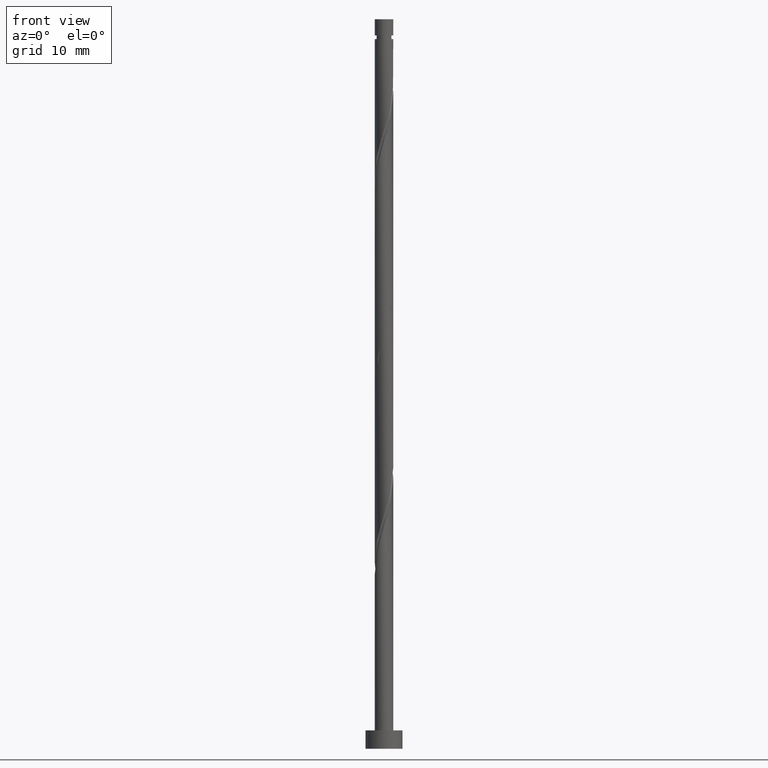
[diagram: clean part render]
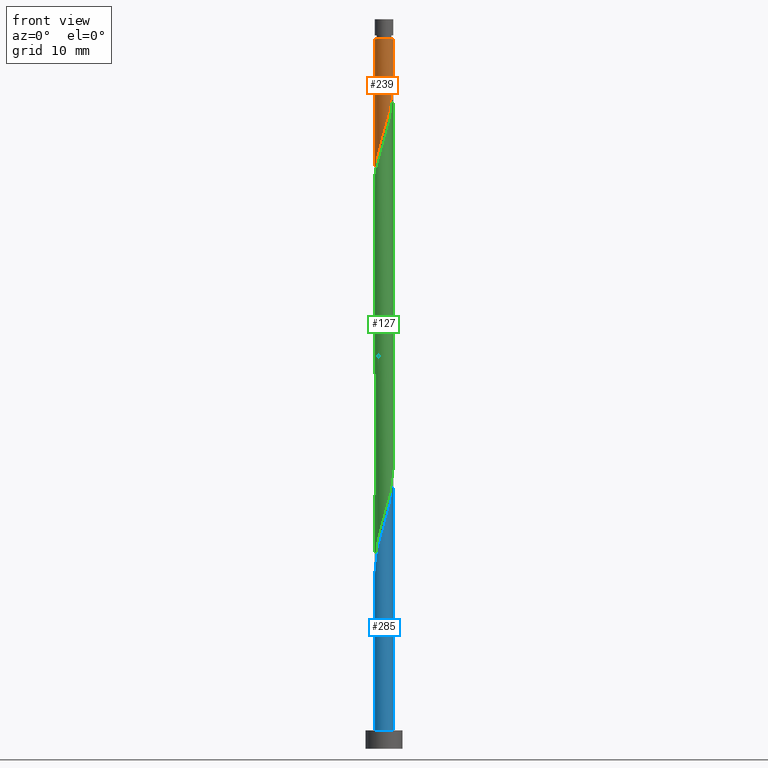
[diagram: same view with three faces highlighted in distinct colors, each labeled with its STEP entity id]
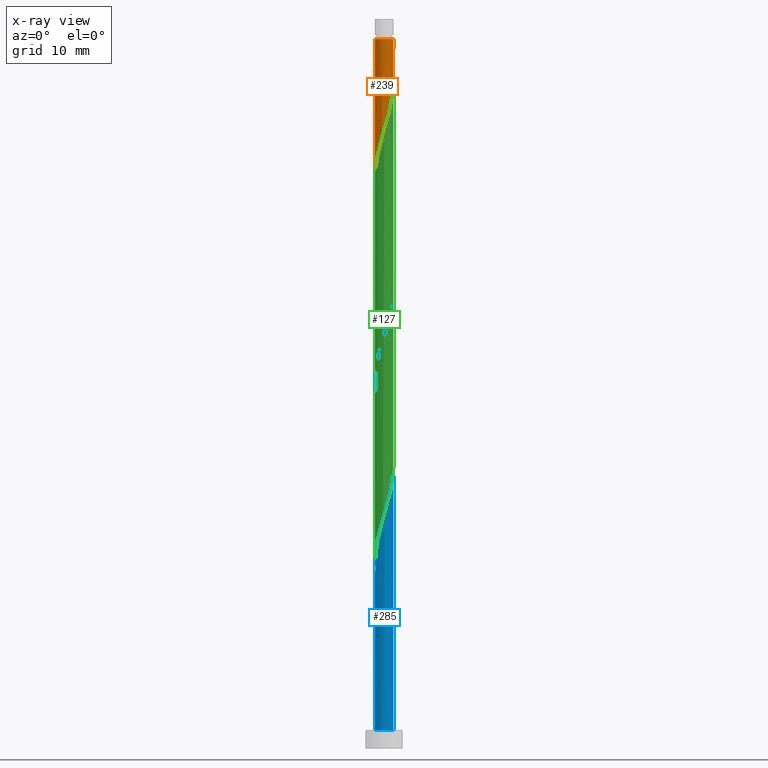
[diagram: x-ray of the same camera — body ghosted, the three highlighted faces saturated]
A machine part, front view with three faces highlighted in distinct colors.
The next image is the same camera in x-ray (body ghosted, the three faces saturated) — at least one of them is partly hidden behind the body in this view.
Their STEP definitions:

[orange] entity #239 — the highlighted cylindrical surface (edge-blend (fillet) strip) has radius 1 mm, axis along (-0, -0, -1).
#2 = CARTESIAN_POINT ( 'NONE',  ( 1.000000000000000000, 1.224646799147353207E-16, 61.79877228452347993 ) ) ;
#20 = AXIS2_PLACEMENT_3D ( 'NONE', #1392, #612, #1376 ) ;
#48 = CARTESIAN_POINT ( 'NONE',  ( -0.9935289914203551120, -0.1135787973490405278, 62.26539769507107991 ) ) ;
#66 = DIRECTION ( 'NONE',  ( -0.000000000000000000, -0.000000000000000000, -1.000000000000000000 ) ) ;
#85 = EDGE_CURVE ( 'NONE', #934, #1208, #392, .T. ) ;
#86 = ORIENTED_EDGE ( 'NONE', *, *, #633, .T. ) ;
#104 = CARTESIAN_POINT ( 'NONE',  ( 0.1989974874211789535, 0.9799999999986033217, 76.84873102840442982 ) ) ;
#142 = DIRECTION ( 'NONE',  ( -0.000000000000000000, -0.000000000000000000, -1.000000000000000000 ) ) ;
#168 = CARTESIAN_POINT ( 'NONE',  ( -0.9755398771694934190, -0.2709383306013544157, 62.78623102840443693 ) ) ;
#192 = CARTESIAN_POINT ( 'NONE',  ( -0.3542142389393653779, -0.9484818943287876003, 65.91123102840442982 ) ) ;
#214 = VECTOR ( 'NONE', #939, 1000.000000000000000 ) ;
#239 = ADVANCED_FACE ( 'NONE', ( #500 ), #946, .T. ) ;
#254 = CARTESIAN_POINT ( 'NONE',  ( 1.000000000000002665, 1.224646799147356412E-16, 76.84873102840442982 ) ) ;
#269 = DIRECTION ( 'NONE',  ( -1.000000000000000000, 0.000000000000000000, 0.000000000000000000 ) ) ;
#276 = DIRECTION ( 'NONE',  ( -1.000000000000000000, 0.000000000000000000, 0.000000000000000000 ) ) ;
#301 = CARTESIAN_POINT ( 'NONE',  ( -0.1989974874213194245, -0.9800000000000023137, 66.43206436173775842 ) ) ;
#308 = CARTESIAN_POINT ( 'NONE',  ( 0.8440690085044240121, 0.5591360655683706993, 74.24456436173775842 ) ) ;
#314 = CARTESIAN_POINT ( 'NONE',  ( 0.6758688661379418372, -0.7370218964083871116, 69.55706436173775842 ) ) ;
#392 = LINE ( 'NONE', #752, #1436 ) ;
#413 = VERTEX_POINT ( 'NONE', #1121 ) ;
#415 = CARTESIAN_POINT ( 'NONE',  ( 0.9800000000000023137, -0.1989974874213195077, 71.64039769507108701 ) ) ;
#473 = EDGE_CURVE ( 'NONE', #934, #1309, #1223, .T. ) ;
#492 = LINE ( 'NONE', #501, #214 ) ;
#500 = FACE_OUTER_BOUND ( 'NONE', #1057, .T. ) ;
#501 = CARTESIAN_POINT ( 'NONE',  ( -1.000000000000000000, 0.000000000000000000, 79.00000000000000000 ) ) ;
#522 = CARTESIAN_POINT ( 'NONE',  ( 0.7370218964083871116, 0.6758688661379418372, 74.76539769507110123 ) ) ;
#531 = CARTESIAN_POINT ( 'NONE',  ( -0.04378073590327353354, -1.011518105671216805, 66.95289769507111544 ) ) ;
#538 = CARTESIAN_POINT ( 'NONE',  ( 0.6299747843123505442, 0.7926016667075124200, 75.28623102840445824 ) ) ;
#551 = CARTESIAN_POINT ( 'NONE',  ( 0.8705417805181501212, -0.4920945116258578778, 70.59873102840444403 ) ) ;
#592 = AXIS2_PLACEMENT_3D ( 'NONE', #1274, #142, #269 ) ;
#603 = CARTESIAN_POINT ( 'NONE',  ( -0.7370218964083871116, -0.6758688661379418372, 64.34873102840444403 ) ) ;
#612 = DIRECTION ( 'NONE',  ( -0.000000000000000000, -0.000000000000000000, -1.000000000000000000 ) ) ;
#633 = EDGE_CURVE ( 'NONE', #1161, #934, #670, .T. ) ;
#661 = EDGE_CURVE ( 'NONE', #1309, #413, #492, .T. ) ;
#670 = CIRCLE ( 'NONE', #20, 1.000000000000002665 ) ;
#723 = ORIENTED_EDGE ( 'NONE', *, *, #85, .F. ) ;
#749 = CARTESIAN_POINT ( 'NONE',  ( -0.4920945116258577667, -0.8705417805181501212, 65.39039769507107280 ) ) ;
#752 = CARTESIAN_POINT ( 'NONE',  ( 1.000000000000000000, 1.224646799147353207E-16, 79.00000000000000000 ) ) ;
#764 = CARTESIAN_POINT ( 'NONE',  ( 0.1989974874211789535, 0.9799999999986033217, 76.84873102840442982 ) ) ;
#861 = CARTESIAN_POINT ( 'NONE',  ( 0.9484818943287876003, -0.3542142389393653779, 71.11956436173778684 ) ) ;
#874 = EDGE_CURVE ( 'NONE', #1161, #413, #930, .T. ) ;
#882 = CARTESIAN_POINT ( 'NONE',  ( 0.7926016667075124200, -0.6299747843123505442, 70.07789769507110123 ) ) ;
#917 = AXIS2_PLACEMENT_3D ( 'NONE', #1391, #1281, #276 ) ;
#923 = CARTESIAN_POINT ( 'NONE',  ( -1.000000000000002665, 0.000000000000000000, 76.84873102840442982 ) ) ;
#930 =( BOUNDED_CURVE ( )  B_SPLINE_CURVE ( 2, ( #764, #1220, #1311, #538, #522, #308, #1414, #1420, #988, #1318, #415, #861, #551, #882, #314, #996, #1326, #1202, #1304, #531, #301, #192, #749, #1194, #603, #1280, #1178, #168, #48, #1261, #1053 ),
 .UNSPECIFIED., .F., .F. ) 
 B_SPLINE_CURVE_WITH_KNOTS ( ( 3, 2, 2, 2, 2, 2, 2, 2, 2, 2, 2, 2, 2, 2, 2, 3 ),
 ( 0.2500000000000005551, 0.2625000000000005107, 0.2750000000000005218, 0.2875000000000004219, 0.3000000000000003775, 0.3125000000000003331, 0.3250000000000003442, 0.3375000000000002998, 0.3500000000000001998, 0.3625000000000002109, 0.3750000000000001665, 0.3875000000000001776, 0.4000000000000001332, 0.4125000000000000333, 0.4250000000000000444, 0.4295322023138555823 ),
 .UNSPECIFIED. ) 
 CURVE ( )  GEOMETRIC_REPRESENTATION_ITEM ( )  RATIONAL_B_SPLINE_CURVE ( ( 0.9090909090909162771, 0.8978984914501334513, 0.9090909090909168322, 0.8978984914501328962, 0.9090909090909168322, 0.8978984914501328962, 0.9090909090909168322, 0.8978984914501328962, 0.9090909090909168322, 0.8978984914501328962, 0.9090909090909168322, 0.8978984914501328962, 0.9090909090909168322, 0.8978984914501328962, 0.9090909090909168322, 0.8978984914501328962, 0.9090909090909168322, 0.8978984914501328962, 0.9090909090909168322, 0.8978984914501328962, 0.9090909090909168322, 0.8978984914501328962, 0.9090909090909168322, 0.8978984914501328962, 0.9090909090909168322, 0.8978984914501328962, 0.9090909090909168322, 0.8978984914501328962, 0.9090909090909168322, 0.9050328050005809200, 0.9039174447099389553 ) ) 
 REPRESENTATION_ITEM ( '' )  );
#934 = VERTEX_POINT ( 'NONE', #254 ) ;
#939 = DIRECTION ( 'NONE',  ( -0.000000000000000000, -0.000000000000000000, -1.000000000000000000 ) ) ;
#946 = CYLINDRICAL_SURFACE ( 'NONE', #917, 1.000000000000000000 ) ;
#970 = ORIENTED_EDGE ( 'NONE', *, *, #661, .T. ) ;
#988 = CARTESIAN_POINT ( 'NONE',  ( 0.9935289914203551120, 0.1135787973490403890, 72.68206436173775842 ) ) ;
#996 = CARTESIAN_POINT ( 'NONE',  ( 0.5591360655683709213, -0.8440690085044240121, 69.03623102840444403 ) ) ;
#1053 = CARTESIAN_POINT ( 'NONE',  ( -1.000000000000001110, -2.173999903564831560E-16, 61.88853346987465898 ) ) ;
#1057 = EDGE_LOOP ( 'NONE', ( #86, #1315, #723, #1156, #970, #1094 ) ) ;
#1094 = ORIENTED_EDGE ( 'NONE', *, *, #874, .F. ) ;
#1121 = CARTESIAN_POINT ( 'NONE',  ( -1.000000000000001110, -2.173999903564831560E-16, 61.88853346987465898 ) ) ;
#1156 = ORIENTED_EDGE ( 'NONE', *, *, #473, .T. ) ;
#1161 = VERTEX_POINT ( 'NONE', #104 ) ;
#1178 = CARTESIAN_POINT ( 'NONE',  ( -0.9098044428369587155, -0.4150371980848626130, 63.30706436173775842 ) ) ;
#1194 = CARTESIAN_POINT ( 'NONE',  ( -0.6299747843123502111, -0.7926016667075124200, 64.86956436173778684 ) ) ;
#1202 = CARTESIAN_POINT ( 'NONE',  ( 0.2709383306013543602, -0.9755398771694934190, 67.99456436173777263 ) ) ;
#1208 = VERTEX_POINT ( 'NONE', #2 ) ;
#1220 = CARTESIAN_POINT ( 'NONE',  ( 0.3542142389393715396, 0.9484818943287840476, 76.32789769507110123 ) ) ;
#1223 = CIRCLE ( 'NONE', #592, 1.000000000000002665 ) ;
#1261 = CARTESIAN_POINT ( 'NONE',  ( -1.000000000000001776, -0.05697373744643279003, 62.07804455908195962 ) ) ;
#1274 = CARTESIAN_POINT ( 'NONE',  ( 0.000000000000000000, 0.000000000000000000, 76.84873102840442982 ) ) ;
#1280 = CARTESIAN_POINT ( 'NONE',  ( -0.8440690085044240121, -0.5591360655683709213, 63.82789769507110833 ) ) ;
#1281 = DIRECTION ( 'NONE',  ( -0.000000000000000000, -0.000000000000000000, -1.000000000000000000 ) ) ;
#1304 = CARTESIAN_POINT ( 'NONE',  ( 0.1135787973490404446, -0.9935289914203551120, 67.47373102840442982 ) ) ;
#1309 = VERTEX_POINT ( 'NONE', #923 ) ;
#1311 = CARTESIAN_POINT ( 'NONE',  ( 0.4920945116258578778, 0.8705417805181501212, 75.80706436173777263 ) ) ;
#1315 = ORIENTED_EDGE ( 'NONE', *, *, #85, .T. ) ;
#1318 = CARTESIAN_POINT ( 'NONE',  ( 1.011518105671216805, -0.04378073590327358905, 72.16123102840445824 ) ) ;
#1326 = CARTESIAN_POINT ( 'NONE',  ( 0.4150371980848626130, -0.9098044428369587155, 68.51539769507111544 ) ) ;
#1376 = DIRECTION ( 'NONE',  ( -1.000000000000000000, 0.000000000000000000, 0.000000000000000000 ) ) ;
#1391 = CARTESIAN_POINT ( 'NONE',  ( 0.000000000000000000, 0.000000000000000000, 79.00000000000000000 ) ) ;
#1392 = CARTESIAN_POINT ( 'NONE',  ( 0.000000000000000000, 0.000000000000000000, 76.84873102840442982 ) ) ;
#1414 = CARTESIAN_POINT ( 'NONE',  ( 0.9098044428369588266, 0.4150371980848625575, 73.72373102840444403 ) ) ;
#1420 = CARTESIAN_POINT ( 'NONE',  ( 0.9755398771694936411, 0.2709383306013543602, 73.20289769507108701 ) ) ;
#1436 = VECTOR ( 'NONE', #66, 1000.000000000000000 ) ;

[blue] entity #285 — the highlighted cylindrical surface (bore or boss wall) has radius 1 mm, axis along (-0, -0, -1).
#19 = VECTOR ( 'NONE', #42, 1000.000000000000000 ) ;
#23 = CARTESIAN_POINT ( 'NONE',  ( 0.1989974874213191747, -0.9800000000000023137, 24.76539769507109767 ) ) ;
#35 = LINE ( 'NONE', #1267, #212 ) ;
#42 = DIRECTION ( 'NONE',  ( -0.000000000000000000, -0.000000000000000000, -1.000000000000000000 ) ) ;
#49 = ORIENTED_EDGE ( 'NONE', *, *, #125, .T. ) ;
#57 = CARTESIAN_POINT ( 'NONE',  ( -0.2709383306013544157, 0.9755398771694934190, 15.91123102840444048 ) ) ;
#58 = CARTESIAN_POINT ( 'NONE',  ( -0.9484818943287878223, -0.3542142389393652113, 40.91123102840442982 ) ) ;
#67 = CARTESIAN_POINT ( 'NONE',  ( -0.4150371980848629461, -0.9098044428369589376, 43.51539769507110123 ) ) ;
#68 = VERTEX_POINT ( 'NONE', #153 ) ;
#76 = CARTESIAN_POINT ( 'NONE',  ( 0.8440690085044243451, -0.5591360655683714764, 27.36956436173776552 ) ) ;
#79 = CARTESIAN_POINT ( 'NONE',  ( -0.9755398771694935300, 0.2709383306013546377, 59.66123102840444403 ) ) ;
#88 = CARTESIAN_POINT ( 'NONE',  ( -0.6299747843123504332, 0.7926016667075129751, 57.57789769507110123 ) ) ;
#96 = DIRECTION ( 'NONE',  ( -1.000000000000000000, 0.000000000000000000, 0.000000000000000000 ) ) ;
#100 = CARTESIAN_POINT ( 'NONE',  ( 0.000000000000000000, 0.000000000000000000, 79.00000000000000000 ) ) ;
#112 = CARTESIAN_POINT ( 'NONE',  ( -0.8440690085044243451, 0.5591360655683713654, 16.95289769507109767 ) ) ;
#125 = EDGE_CURVE ( 'NONE', #319, #172, #1340, .T. ) ;
#135 = CARTESIAN_POINT ( 'NONE',  ( -0.4150371980848629461, -0.9098044428369589376, 22.68206436173775487 ) ) ;
#147 = DIRECTION ( 'NONE',  ( -0.000000000000000000, -0.000000000000000000, -1.000000000000000000 ) ) ;
#153 = CARTESIAN_POINT ( 'NONE',  ( -1.000000000000001554, 3.673310181885356553E-16, 60.55892858693417224 ) ) ;
#154 = CARTESIAN_POINT ( 'NONE',  ( -1.000000000000001776, -0.1005037815259195999, 19.22656649567536036 ) ) ;
#161 = CARTESIAN_POINT ( 'NONE',  ( -0.9800000000000023137, 0.1989974874213193412, 19.55706436173777263 ) ) ;
#170 = CARTESIAN_POINT ( 'NONE',  ( -1.011518105671217249, -0.04378073590327331843, 39.86956436173776552 ) ) ;
#172 = VERTEX_POINT ( 'NONE', #736 ) ;
#179 = CARTESIAN_POINT ( 'NONE',  ( -0.9800000000000023137, -0.1989974874213192024, 40.39039769507109412 ) ) ;
#183 = CARTESIAN_POINT ( 'NONE',  ( 0.7370218964083872226, -0.6758688661379420592, 47.68206436173775842 ) ) ;
#189 = CARTESIAN_POINT ( 'NONE',  ( 0.6758688661379422813, 0.7370218964083872226, 32.05706436173775842 ) ) ;
#198 = CARTESIAN_POINT ( 'NONE',  ( -1.000000000000001332, 0.05697373744643615540, 60.36941749772689292 ) ) ;
#205 = CARTESIAN_POINT ( 'NONE',  ( 1.011518105671217027, 0.04378073590327315884, 50.28623102840442272 ) ) ;
#210 = CARTESIAN_POINT ( 'NONE',  ( 0.1989974874213196743, 0.9800000000000023137, 14.34873102840443515 ) ) ;
#212 = VECTOR ( 'NONE', #147, 1000.000000000000000 ) ;
#213 = CARTESIAN_POINT ( 'NONE',  ( 0.5591360655683715875, 0.8440690085044241231, 53.41123102840443693 ) ) ;
#218 = FACE_OUTER_BOUND ( 'NONE', #972, .T. ) ;
#238 = EDGE_CURVE ( 'NONE', #68, #1332, #534, .T. ) ;
#255 = EDGE_CURVE ( 'NONE', #1332, #312, #1224, .T. ) ;
#256 = CARTESIAN_POINT ( 'NONE',  ( -0.2709383306013546933, -0.9755398771694935300, 23.20289769507109767 ) ) ;
#285 = ADVANCED_FACE ( 'NONE', ( #218 ), #1228, .T. ) ;
#286 = AXIS2_PLACEMENT_3D ( 'NONE', #453, #701, #1344 ) ;
#288 = CARTESIAN_POINT ( 'NONE',  ( -0.7926016667075124200, 0.6299747843123502111, 17.99456436173777263 ) ) ;
#289 = CARTESIAN_POINT ( 'NONE',  ( -0.6758688661379420592, -0.7370218964083872226, 21.64039769507110123 ) ) ;
#296 = CARTESIAN_POINT ( 'NONE',  ( 0.04378073590327339476, 1.011518105671217027, 14.86956436173777085 ) ) ;
#297 = CARTESIAN_POINT ( 'NONE',  ( 0.2709383306013548043, 0.9755398771694935300, 33.61956436173776552 ) ) ;
#299 = ORIENTED_EDGE ( 'NONE', *, *, #767, .F. ) ;
#305 = CARTESIAN_POINT ( 'NONE',  ( 0.9484818943287878223, 0.3542142389393650448, 30.49456436173775842 ) ) ;
#312 = VERTEX_POINT ( 'NONE', #761 ) ;
#319 = VERTEX_POINT ( 'NONE', #561 ) ;
#321 = CARTESIAN_POINT ( 'NONE',  ( 0.04378073590327322129, -1.011518105671217027, 45.07789769507110833 ) ) ;
#327 = CARTESIAN_POINT ( 'NONE',  ( 0.1989974874213191747, -0.9800000000000023137, 45.59873102840442982 ) ) ;
#337 = CARTESIAN_POINT ( 'NONE',  ( -1.000000000000001554, 1.259420633789265301E-15, 18.89226192026751505 ) ) ;
#364 = EDGE_CURVE ( 'NONE', #172, #319, #733, .T. ) ;
#373 = CARTESIAN_POINT ( 'NONE',  ( -1.000000000000001554, 1.259420633789265301E-15, 18.89226192026751505 ) ) ;
#379 =( BOUNDED_CURVE ( )  B_SPLINE_CURVE ( 2, ( #580, #1134, #476, #1024, #457, #112, #573, #1031, #1017, #1369, #337 ),
 .UNSPECIFIED., .F., .T. ) 
 B_SPLINE_CURVE_WITH_KNOTS ( ( 3, 2, 2, 2, 2, 3 ),
 ( 0.000000000000000000, 0.01249999999999995559, 0.02500000000000002220, 0.03749999999999997780, 0.05000000000000004441, 0.05453220231385547817 ),
 .UNSPECIFIED. ) 
 CURVE ( )  GEOMETRIC_REPRESENTATION_ITEM ( )  RATIONAL_B_SPLINE_CURVE ( ( 0.9090909090909289336, 0.8978984914501447756, 0.9090909090909289336, 0.8978984914501447756, 0.9090909090909289336, 0.8978984914501447756, 0.9090909090909289336, 0.8978984914501447756, 0.9090909090909289336, 0.9050328050005931324, 0.9039174447099511678 ) ) 
 REPRESENTATION_ITEM ( '' )  );
#380 = AXIS2_PLACEMENT_3D ( 'NONE', #100, #433, #669 ) ;
#410 = CARTESIAN_POINT ( 'NONE',  ( -0.1135787973490405695, 0.9935289914203551120, 15.39039769507110300 ) ) ;
#411 = CARTESIAN_POINT ( 'NONE',  ( -0.5591360655683714764, -0.8440690085044243451, 42.99456436173777263 ) ) ;
#419 = CARTESIAN_POINT ( 'NONE',  ( 0.9935289914203553341, -0.1135787973490407776, 28.93206436173777263 ) ) ;
#422 = CARTESIAN_POINT ( 'NONE',  ( 0.9755398771694935300, -0.2709383306013547488, 49.24456436173777263 ) ) ;
#428 = CARTESIAN_POINT ( 'NONE',  ( 0.6299747843123504332, -0.7926016667075130862, 47.16123102840443693 ) ) ;
#433 = DIRECTION ( 'NONE',  ( -0.000000000000000000, -0.000000000000000000, -1.000000000000000000 ) ) ;
#436 = CARTESIAN_POINT ( 'NONE',  ( 0.9935289914203553341, -0.1135787973490407776, 49.76539769507109412 ) ) ;
#442 = CARTESIAN_POINT ( 'NONE',  ( 0.9484818943287878223, 0.3542142389393650448, 51.32789769507110123 ) ) ;
#453 = CARTESIAN_POINT ( 'NONE',  ( 0.000000000000000000, 0.000000000000000000, 2.000000000000000000 ) ) ;
#457 = CARTESIAN_POINT ( 'NONE',  ( -0.7370218964083873336, 0.6758688661379420592, 16.43206436173776908 ) ) ;
#458 = EDGE_CURVE ( 'NONE', #503, #319, #35, .T. ) ;
#476 = CARTESIAN_POINT ( 'NONE',  ( -0.4920945116258576557, 0.8705417805181502322, 15.39039769507109945 ) ) ;
#477 = CARTESIAN_POINT ( 'NONE',  ( -0.9484818943287878223, -0.3542142389393652113, 20.07789769507109767 ) ) ;
#482 =( BOUNDED_CURVE ( )  B_SPLINE_CURVE ( 2, ( #1162, #154, #510, #477, #1400, #847, #289, #1142, #135, #256, #589, #1033, #23, #924, #1370, #707, #1149, #76, #753, #1070, #419, #1300, #971, #305, #1308, #1198, #189, #1078, #864, #297, #647, #1087, #535, #1417, #1188, #978, #737, #1180, #745, #518, #638, #170, #179, #58, #629, #963, #1409, #411, #67, #857, #528, #321, #327, #968, #1103, #428, #183, #888, #773, #422, #436, #205, #650, #442, #981, #1434, #1426, #213, #671, #1090, #656, #873, #1442, #1096, #974, #88, #642, #756, #1082, #79, #1110, #198, #1210 ),
 .UNSPECIFIED., .F., .T. ) 
 B_SPLINE_CURVE_WITH_KNOTS ( ( 3, 2, 2, 2, 2, 2, 2, 2, 2, 2, 2, 2, 2, 2, 2, 2, 2, 2, 2, 2, 2, 2, 2, 2, 2, 2, 2, 2, 2, 2, 2, 2, 2, 2, 2, 2, 2, 2, 2, 2, 2, 3 ),
 ( 0.05453220231385547817, 0.06250000000000000000, 0.07499999999999995559, 0.08750000000000002220, 0.09999999999999997780, 0.1125000000000000444, 0.1250000000000000000, 0.1374999999999999556, 0.1500000000000000222, 0.1624999999999999778, 0.1750000000000000444, 0.1875000000000000000, 0.1999999999999999556, 0.2125000000000000222, 0.2249999999999999778, 0.2375000000000000444, 0.2500000000000000000, 0.2624999999999999556, 0.2750000000000000222, 0.2874999999999999778, 0.3000000000000000444, 0.3125000000000000000, 0.3249999999999999556, 0.3375000000000000222, 0.3499999999999999778, 0.3625000000000000444, 0.3750000000000000000, 0.3874999999999999556, 0.4000000000000000222, 0.4124999999999999778, 0.4250000000000000444, 0.4375000000000000000, 0.4499999999999999556, 0.4625000000000000222, 0.4749999999999999778, 0.4875000000000000444, 0.5000000000000000000, 0.5124999999999999556, 0.5250000000000000222, 0.5374999999999999778, 0.5500000000000000444, 0.5545322023138553602 ),
 .UNSPECIFIED. ) 
 CURVE ( )  GEOMETRIC_REPRESENTATION_ITEM ( )  RATIONAL_B_SPLINE_CURVE ( ( 0.9039174447099511678, 0.9019565955404806878, 0.9090909090909289336, 0.8978984914501447756, 0.9090909090909289336, 0.8978984914501447756, 0.9090909090909289336, 0.8978984914501447756, 0.9090909090909289336, 0.8978984914501447756, 0.9090909090909289336, 0.8978984914501447756, 0.9090909090909289336, 0.8978984914501447756, 0.9090909090909289336, 0.8978984914501447756, 0.9090909090909289336, 0.8978984914501447756, 0.9090909090909289336, 0.8978984914501447756, 0.9090909090909289336, 0.8978984914501447756, 0.9090909090909289336, 0.8978984914501447756, 0.9090909090909289336, 0.8978984914501447756, 0.9090909090909289336, 0.8978984914501447756, 0.9090909090909289336, 0.8978984914501447756, 0.9090909090909289336, 0.8978984914501447756, 0.9090909090909289336, 0.8978984914501447756, 0.9090909090909289336, 0.8978984914501447756, 0.9090909090909289336, 0.8978984914501447756, 0.9090909090909289336, 0.8978984914501447756, 0.9090909090909289336, 0.8978984914501447756, 0.9090909090909289336, 0.8978984914501447756, 0.9090909090909289336, 0.8978984914501447756, 0.9090909090909289336, 0.8978984914501447756, 0.9090909090909289336, 0.8978984914501447756, 0.9090909090909289336, 0.8978984914501447756, 0.9090909090909289336, 0.8978984914501447756, 0.9090909090909289336, 0.8978984914501447756, 0.9090909090909289336, 0.8978984914501447756, 0.9090909090909289336, 0.8978984914501447756, 0.9090909090909289336, 0.8978984914501447756, 0.9090909090909289336, 0.8978984914501447756, 0.9090909090909289336, 0.8978984914501447756, 0.9090909090909289336, 0.8978984914501447756, 0.9090909090909289336, 0.8978984914501447756, 0.9090909090909289336, 0.8978984914501447756, 0.9090909090909289336, 0.8978984914501447756, 0.9090909090909289336, 0.8978984914501447756, 0.9090909090909289336, 0.8978984914501447756, 0.9090909090909289336, 0.8978984914501447756, 0.9090909090909289336, 0.9050328050005931324, 0.9039174447099509457 ) ) 
 REPRESENTATION_ITEM ( '' )  );
#503 = VERTEX_POINT ( 'NONE', #373 ) ;
#509 = CARTESIAN_POINT ( 'NONE',  ( -0.8705417805181501212, 0.4920945116258576557, 18.51539769507110123 ) ) ;
#510 = CARTESIAN_POINT ( 'NONE',  ( -0.9800000000000023137, -0.1989974874213192024, 19.55706436173776552 ) ) ;
#517 = DIRECTION ( 'NONE',  ( 0.000000000000000000, 0.000000000000000000, 1.000000000000000000 ) ) ;
#518 = CARTESIAN_POINT ( 'NONE',  ( -0.9755398771694935300, 0.2709383306013546377, 38.82789769507110833 ) ) ;
#528 = CARTESIAN_POINT ( 'NONE',  ( -0.1135787973490407221, -0.9935289914203553341, 44.55706436173776552 ) ) ;
#534 = LINE ( 'NONE', #720, #19 ) ;
#535 = CARTESIAN_POINT ( 'NONE',  ( -0.1989974874213190914, 0.9800000000000023137, 35.18206436173775842 ) ) ;
#561 = CARTESIAN_POINT ( 'NONE',  ( -1.000000000000000000, 0.000000000000000000, 2.000000000000000000 ) ) ;
#573 = CARTESIAN_POINT ( 'NONE',  ( -0.9098044428369590486, 0.4150371980848628350, 17.47373102840443693 ) ) ;
#580 = CARTESIAN_POINT ( 'NONE',  ( -0.1989974874213192024, 0.9800000000000025357, 14.34873102840443515 ) ) ;
#589 = CARTESIAN_POINT ( 'NONE',  ( -0.1135787973490407221, -0.9935289914203553341, 23.72373102840443337 ) ) ;
#621 = CARTESIAN_POINT ( 'NONE',  ( -1.000000000000001554, 0.1005037815259182815, 19.88756222780018845 ) ) ;
#628 = CARTESIAN_POINT ( 'NONE',  ( -0.6758688661379419482, 0.7370218964083870006, 17.47373102840444048 ) ) ;
#629 = CARTESIAN_POINT ( 'NONE',  ( -0.8705417805181502322, -0.4920945116258576557, 41.43206436173775842 ) ) ;
#638 = CARTESIAN_POINT ( 'NONE',  ( -0.9935289914203553341, 0.1135787973490406805, 39.34873102840441561 ) ) ;
#642 = CARTESIAN_POINT ( 'NONE',  ( -0.7370218964083873336, 0.6758688661379420592, 58.09873102840441561 ) ) ;
#646 = CARTESIAN_POINT ( 'NONE',  ( 0.000000000000000000, 0.000000000000000000, 2.000000000000000000 ) ) ;
#647 = CARTESIAN_POINT ( 'NONE',  ( 0.1135787973490409025, 0.9935289914203553341, 34.14039769507109412 ) ) ;
#650 = CARTESIAN_POINT ( 'NONE',  ( 0.9800000000000023137, 0.1989974874213190914, 50.80706436173775131 ) ) ;
#656 = CARTESIAN_POINT ( 'NONE',  ( 0.1135787973490409025, 0.9935289914203553341, 54.97373102840442272 ) ) ;
#664 = DIRECTION ( 'NONE',  ( 0.000000000000000000, 0.000000000000000000, -1.000000000000000000 ) ) ;
#669 = DIRECTION ( 'NONE',  ( -1.000000000000000000, 0.000000000000000000, 0.000000000000000000 ) ) ;
#671 = CARTESIAN_POINT ( 'NONE',  ( 0.4150371980848630571, 0.9098044428369589376, 53.93206436173775842 ) ) ;
#701 = DIRECTION ( 'NONE',  ( 0.000000000000000000, 0.000000000000000000, 1.000000000000000000 ) ) ;
#707 = CARTESIAN_POINT ( 'NONE',  ( 0.6299747843123504332, -0.7926016667075130862, 26.32789769507109767 ) ) ;
#720 = CARTESIAN_POINT ( 'NONE',  ( -1.000000000000000000, 0.000000000000000000, 79.00000000000000000 ) ) ;
#733 = CIRCLE ( 'NONE', #286, 1.000000000000000000 ) ;
#736 = CARTESIAN_POINT ( 'NONE',  ( 1.000000000000000000, 0.000000000000000000, 2.000000000000000000 ) ) ;
#737 = CARTESIAN_POINT ( 'NONE',  ( -0.7370218964083873336, 0.6758688661379420592, 37.26539769507110123 ) ) ;
#744 = CARTESIAN_POINT ( 'NONE',  ( -0.4150371980848627795, 0.9098044428369588266, 16.43206436173776908 ) ) ;
#745 = CARTESIAN_POINT ( 'NONE',  ( -0.9098044428369590486, 0.4150371980848628350, 38.30706436173775842 ) ) ;
#753 = CARTESIAN_POINT ( 'NONE',  ( 0.9098044428369589376, -0.4150371980848629461, 27.89039769507109767 ) ) ;
#756 = CARTESIAN_POINT ( 'NONE',  ( -0.8440690085044243451, 0.5591360655683713654, 58.61956436173775842 ) ) ;
#757 = AXIS2_PLACEMENT_3D ( 'NONE', #1215, #664, #96 ) ;
#761 = CARTESIAN_POINT ( 'NONE',  ( 0.1989974874213196743, 0.9800000000000023137, 14.34873102840443515 ) ) ;
#767 = EDGE_CURVE ( 'NONE', #503, #68, #482, .T. ) ;
#773 = CARTESIAN_POINT ( 'NONE',  ( 0.9098044428369589376, -0.4150371980848629461, 48.72373102840442982 ) ) ;
#784 = EDGE_CURVE ( 'NONE', #1418, #312, #1381, .T. ) ;
#790 = CARTESIAN_POINT ( 'NONE',  ( -1.000000000000001554, -1.101993054565621856E-15, 20.22186680320802665 ) ) ;
#838 = DIRECTION ( 'NONE',  ( 1.000000000000000000, 0.000000000000000000, 0.000000000000000000 ) ) ;
#847 = CARTESIAN_POINT ( 'NONE',  ( -0.7926016667075129751, -0.6299747843123504332, 21.11956436173776908 ) ) ;
#857 = CARTESIAN_POINT ( 'NONE',  ( -0.2709383306013546933, -0.9755398771694935300, 44.03623102840441561 ) ) ;
#864 = CARTESIAN_POINT ( 'NONE',  ( 0.4150371980848630571, 0.9098044428369589376, 33.09873102840442982 ) ) ;
#873 = CARTESIAN_POINT ( 'NONE',  ( -0.04378073590327311720, 1.011518105671217027, 55.49456436173776552 ) ) ;
#888 = CARTESIAN_POINT ( 'NONE',  ( 0.8440690085044243451, -0.5591360655683714764, 48.20289769507110123 ) ) ;
#909 = CARTESIAN_POINT ( 'NONE',  ( -0.1989974874213192302, 0.9800000000000025357, 14.34873102840443515 ) ) ;
#924 = CARTESIAN_POINT ( 'NONE',  ( 0.3542142389393651558, -0.9484818943287878223, 25.28623102840442982 ) ) ;
#963 = CARTESIAN_POINT ( 'NONE',  ( -0.7926016667075129751, -0.6299747843123504332, 41.95289769507108701 ) ) ;
#968 = CARTESIAN_POINT ( 'NONE',  ( 0.3542142389393651558, -0.9484818943287878223, 46.11956436173775131 ) ) ;
#971 = CARTESIAN_POINT ( 'NONE',  ( 0.9800000000000023137, 0.1989974874213190914, 29.97373102840442627 ) ) ;
#972 = EDGE_LOOP ( 'NONE', ( #1424, #299, #1284, #49, #1064, #1042, #979, #1291, #1378 ) ) ;
#974 = CARTESIAN_POINT ( 'NONE',  ( -0.4920945116258576557, 0.8705417805181502322, 57.05706436173777973 ) ) ;
#978 = CARTESIAN_POINT ( 'NONE',  ( -0.6299747843123504332, 0.7926016667075129751, 36.74456436173777263 ) ) ;
#979 = ORIENTED_EDGE ( 'NONE', *, *, #1253, .F. ) ;
#981 = CARTESIAN_POINT ( 'NONE',  ( 0.8705417805181502322, 0.4920945116258576557, 51.84873102840443693 ) ) ;
#1017 = CARTESIAN_POINT ( 'NONE',  ( -0.9935289914203553341, 0.1135787973490406805, 18.51539769507109412 ) ) ;
#1024 = CARTESIAN_POINT ( 'NONE',  ( -0.6299747843123504332, 0.7926016667075129751, 15.91123102840443693 ) ) ;
#1031 = CARTESIAN_POINT ( 'NONE',  ( -0.9755398771694935300, 0.2709383306013546377, 17.99456436173776552 ) ) ;
#1033 = CARTESIAN_POINT ( 'NONE',  ( 0.04378073590327322129, -1.011518105671217027, 24.24456436173776552 ) ) ;
#1042 = ORIENTED_EDGE ( 'NONE', *, *, #458, .F. ) ;
#1062 = CARTESIAN_POINT ( 'NONE',  ( -0.9484818943287878223, 0.3542142389393652113, 19.03623102840444048 ) ) ;
#1064 = ORIENTED_EDGE ( 'NONE', *, *, #364, .T. ) ;
#1069 = CARTESIAN_POINT ( 'NONE',  ( -0.5591360655683710323, 0.8440690085044240121, 16.95289769507110123 ) ) ;
#1070 = CARTESIAN_POINT ( 'NONE',  ( 0.9755398771694935300, -0.2709383306013547488, 28.41123102840442627 ) ) ;
#1078 = CARTESIAN_POINT ( 'NONE',  ( 0.5591360655683715875, 0.8440690085044241231, 32.57789769507109412 ) ) ;
#1082 = CARTESIAN_POINT ( 'NONE',  ( -0.9098044428369590486, 0.4150371980848628350, 59.14039769507107991 ) ) ;
#1087 = CARTESIAN_POINT ( 'NONE',  ( -0.04378073590327311720, 1.011518105671217027, 34.66123102840442982 ) ) ;
#1090 = CARTESIAN_POINT ( 'NONE',  ( 0.2709383306013548043, 0.9755398771694935300, 54.45289769507109412 ) ) ;
#1096 = CARTESIAN_POINT ( 'NONE',  ( -0.3542142389393652668, 0.9484818943287878223, 56.53623102840442982 ) ) ;
#1103 = CARTESIAN_POINT ( 'NONE',  ( 0.4920945116258576557, -0.8705417805181502322, 46.64039769507108701 ) ) ;
#1110 = CARTESIAN_POINT ( 'NONE',  ( -0.9935289914203553341, 0.1135787973490406805, 60.18206436173776552 ) ) ;
#1134 = CARTESIAN_POINT ( 'NONE',  ( -0.3542142389393652668, 0.9484818943287878223, 14.86956436173776552 ) ) ;
#1142 = CARTESIAN_POINT ( 'NONE',  ( -0.5591360655683714764, -0.8440690085044243451, 22.16123102840442982 ) ) ;
#1149 = CARTESIAN_POINT ( 'NONE',  ( 0.7370218964083872226, -0.6758688661379420592, 26.84873102840442272 ) ) ;
#1162 = CARTESIAN_POINT ( 'NONE',  ( -1.000000000000001554, 1.259420633789265301E-15, 18.89226192026751505 ) ) ;
#1171 = CARTESIAN_POINT ( 'NONE',  ( -1.000000000000001554, -1.101993054565621856E-15, 20.22186680320803021 ) ) ;
#1180 = CARTESIAN_POINT ( 'NONE',  ( -0.8440690085044243451, 0.5591360655683713654, 37.78623102840443693 ) ) ;
#1188 = CARTESIAN_POINT ( 'NONE',  ( -0.4920945116258576557, 0.8705417805181502322, 36.22373102840442982 ) ) ;
#1198 = CARTESIAN_POINT ( 'NONE',  ( 0.7926016667075133082, 0.6299747843123504332, 31.53623102840443693 ) ) ;
#1210 = CARTESIAN_POINT ( 'NONE',  ( -1.000000000000001554, 3.673310181885356553E-16, 60.55892858693417224 ) ) ;
#1215 = CARTESIAN_POINT ( 'NONE',  ( 0.000000000000000000, 0.000000000000000000, 14.34873102840443515 ) ) ;
#1224 =( BOUNDED_CURVE ( )  B_SPLINE_CURVE ( 2, ( #1171, #621, #161, #1062, #509, #288, #628, #1069, #744, #57, #410, #296, #210 ),
 .UNSPECIFIED., .F., .F. ) 
 B_SPLINE_CURVE_WITH_KNOTS ( ( 3, 2, 2, 2, 2, 2, 3 ),
 ( 0.9295322023138553602, 0.9375000000000000000, 0.9499999999999999556, 0.9625000000000000222, 0.9749999999999999778, 0.9875000000000000444, 1.000000000000000000 ),
 .UNSPECIFIED. ) 
 CURVE ( )  GEOMETRIC_REPRESENTATION_ITEM ( )  RATIONAL_B_SPLINE_CURVE ( ( 0.9039174447099389553, 0.9019565955404684754, 0.9090909090909168322, 0.8978984914501328962, 0.9090909090909168322, 0.8978984914501328962, 0.9090909090909168322, 0.8978984914501328962, 0.9090909090909168322, 0.8978984914501328962, 0.9090909090909168322, 0.8978984914501328962, 0.9090909090909168322 ) ) 
 REPRESENTATION_ITEM ( '' )  );
#1228 = CYLINDRICAL_SURFACE ( 'NONE', #380, 1.000000000000000000 ) ;
#1253 = EDGE_CURVE ( 'NONE', #1418, #503, #379, .T. ) ;
#1267 = CARTESIAN_POINT ( 'NONE',  ( -1.000000000000000000, 0.000000000000000000, 79.00000000000000000 ) ) ;
#1284 = ORIENTED_EDGE ( 'NONE', *, *, #458, .T. ) ;
#1291 = ORIENTED_EDGE ( 'NONE', *, *, #784, .T. ) ;
#1300 = CARTESIAN_POINT ( 'NONE',  ( 1.011518105671217027, 0.04378073590327315884, 29.45289769507110478 ) ) ;
#1308 = CARTESIAN_POINT ( 'NONE',  ( 0.8705417805181502322, 0.4920945116258576557, 31.01539769507110123 ) ) ;
#1332 = VERTEX_POINT ( 'NONE', #790 ) ;
#1340 = CIRCLE ( 'NONE', #1361, 1.000000000000000000 ) ;
#1344 = DIRECTION ( 'NONE',  ( 1.000000000000000000, 0.000000000000000000, 0.000000000000000000 ) ) ;
#1361 = AXIS2_PLACEMENT_3D ( 'NONE', #646, #517, #838 ) ;
#1369 = CARTESIAN_POINT ( 'NONE',  ( -1.000000000000001554, 0.05697373744643468435, 18.70275083106023217 ) ) ;
#1370 = CARTESIAN_POINT ( 'NONE',  ( 0.4920945116258576557, -0.8705417805181502322, 25.80706436173775842 ) ) ;
#1378 = ORIENTED_EDGE ( 'NONE', *, *, #255, .F. ) ;
#1381 = CIRCLE ( 'NONE', #757, 1.000000000000000000 ) ;
#1400 = CARTESIAN_POINT ( 'NONE',  ( -0.8705417805181502322, -0.4920945116258576557, 20.59873102840443337 ) ) ;
#1409 = CARTESIAN_POINT ( 'NONE',  ( -0.6758688661379420592, -0.7370218964083872226, 42.47373102840442982 ) ) ;
#1417 = CARTESIAN_POINT ( 'NONE',  ( -0.3542142389393652668, 0.9484818943287878223, 35.70289769507108701 ) ) ;
#1418 = VERTEX_POINT ( 'NONE', #909 ) ;
#1424 = ORIENTED_EDGE ( 'NONE', *, *, #238, .F. ) ;
#1426 = CARTESIAN_POINT ( 'NONE',  ( 0.6758688661379422813, 0.7370218964083872226, 52.89039769507108701 ) ) ;
#1434 = CARTESIAN_POINT ( 'NONE',  ( 0.7926016667075133082, 0.6299747843123504332, 52.36956436173775131 ) ) ;
#1442 = CARTESIAN_POINT ( 'NONE',  ( -0.1989974874213190914, 0.9800000000000023137, 56.01539769507110123 ) ) ;

[green] entity #127 — the highlighted cylindrical surface (bore or boss wall) has radius 1 mm, axis along (-0, -0, -1).
#7 = DIRECTION ( 'NONE',  ( -0.000000000000000000, -0.000000000000000000, -1.000000000000000000 ) ) ;
#17 = AXIS2_PLACEMENT_3D ( 'NONE', #1061, #508, #287 ) ;
#19 = VECTOR ( 'NONE', #42, 1000.000000000000000 ) ;
#34 = CARTESIAN_POINT ( 'NONE',  ( 0.9484818943287878223, 0.3542142389393650448, 72.16123102840442982 ) ) ;
#42 = DIRECTION ( 'NONE',  ( -0.000000000000000000, -0.000000000000000000, -1.000000000000000000 ) ) ;
#56 = CARTESIAN_POINT ( 'NONE',  ( -0.9800000000000023137, 0.1989974874213193412, 61.22373102840442982 ) ) ;
#68 = VERTEX_POINT ( 'NONE', #153 ) ;
#81 = CARTESIAN_POINT ( 'NONE',  ( -0.9800000000000023137, 0.1989974874213193412, 40.39039769507109412 ) ) ;
#90 = CARTESIAN_POINT ( 'NONE',  ( -0.6299747843123502111, -0.7926016667075124200, 44.03623102840442272 ) ) ;
#110 = CARTESIAN_POINT ( 'NONE',  ( -0.3542142389393653779, -0.9484818943287876003, 24.24456436173776908 ) ) ;
#127 = ADVANCED_FACE ( 'NONE', ( #1408 ), #1399, .T. ) ;
#141 = CARTESIAN_POINT ( 'NONE',  ( -0.7926016667075124200, 0.6299747843123502111, 59.66123102840443693 ) ) ;
#146 = CARTESIAN_POINT ( 'NONE',  ( 0.04378073590327339476, 1.011518105671217027, 56.53623102840442982 ) ) ;
#152 = CARTESIAN_POINT ( 'NONE',  ( 0.4150371980848630571, 0.9098044428369589376, 74.76539769507110123 ) ) ;
#153 = CARTESIAN_POINT ( 'NONE',  ( -1.000000000000001554, 3.673310181885356553E-16, 60.55892858693417224 ) ) ;
#160 = CARTESIAN_POINT ( 'NONE',  ( 1.011518105671217027, 0.04378073590327315884, 71.11956436173775842 ) ) ;
#164 = ORIENTED_EDGE ( 'NONE', *, *, #1320, .F. ) ;
#169 = DIRECTION ( 'NONE',  ( -0.000000000000000000, -0.000000000000000000, -1.000000000000000000 ) ) ;
#177 = CARTESIAN_POINT ( 'NONE',  ( 0.4920945116258578778, 0.8705417805181501212, 34.14039769507110123 ) ) ;
#187 = CARTESIAN_POINT ( 'NONE',  ( -0.2709383306013544157, 0.9755398771694934190, 36.74456436173776552 ) ) ;
#194 = CARTESIAN_POINT ( 'NONE',  ( -0.7370218964083871116, -0.6758688661379418372, 43.51539769507110123 ) ) ;
#200 = CARTESIAN_POINT ( 'NONE',  ( 0.6758688661379418372, -0.7370218964083871116, 48.72373102840442982 ) ) ;
#207 = CARTESIAN_POINT ( 'NONE',  ( 1.000000000000001332, 9.745516809083730589E-16, 51.47186680320800889 ) ) ;
#214 = VECTOR ( 'NONE', #939, 1000.000000000000000 ) ;
#219 = CARTESIAN_POINT ( 'NONE',  ( 1.000000000000000000, 1.224646799147353207E-16, 79.00000000000000000 ) ) ;
#222 = CARTESIAN_POINT ( 'NONE',  ( 0.9935289914203551120, 0.1135787973490403890, 31.01539769507110123 ) ) ;
#225 =( BOUNDED_CURVE ( )  B_SPLINE_CURVE ( 2, ( #207, #855, #992, #310, #526, #775, #200, #751, #316, #1098, #409, #884, #645, #324, #1206, #90, #194, #554, #999, #1422, #540, #652, #81, #1085, #983, #1415, #295, #547, #667, #187, #1107, #431, #438, #1186, #177, #1329, #636, #1076, #1306, #1196, #222, #891, #1233, #679, #1239, #230, #449, #1226, #897, #1119, #444, #559, #1004, #110, #565, #1112, #1455, #329, #1009, #455, #1444, #1335, #902 ),
 .UNSPECIFIED., .F., .F. ) 
 B_SPLINE_CURVE_WITH_KNOTS ( ( 3, 2, 2, 2, 2, 2, 2, 2, 2, 2, 2, 2, 2, 2, 2, 2, 2, 2, 2, 2, 2, 2, 2, 2, 2, 2, 2, 2, 2, 2, 2, 3 ),
 ( 0.5545322023138554712, 0.5625000000000000000, 0.5749999999999999556, 0.5875000000000000222, 0.5999999999999999778, 0.6125000000000000444, 0.6250000000000000000, 0.6374999999999999556, 0.6500000000000000222, 0.6624999999999999778, 0.6750000000000000444, 0.6875000000000000000, 0.6999999999999999556, 0.7125000000000000222, 0.7249999999999999778, 0.7375000000000000444, 0.7500000000000000000, 0.7624999999999999556, 0.7750000000000000222, 0.7874999999999999778, 0.8000000000000000444, 0.8125000000000000000, 0.8249999999999999556, 0.8375000000000000222, 0.8499999999999999778, 0.8625000000000000444, 0.8750000000000000000, 0.8874999999999999556, 0.9000000000000000222, 0.9124999999999999778, 0.9250000000000000444, 0.9295322023138553602 ),
 .UNSPECIFIED. ) 
 CURVE ( )  GEOMETRIC_REPRESENTATION_ITEM ( )  RATIONAL_B_SPLINE_CURVE ( ( 0.9039174447099389553, 0.9019565955404686974, 0.9090909090909168322, 0.8978984914501328962, 0.9090909090909168322, 0.8978984914501328962, 0.9090909090909168322, 0.8978984914501328962, 0.9090909090909168322, 0.8978984914501328962, 0.9090909090909168322, 0.8978984914501328962, 0.9090909090909168322, 0.8978984914501328962, 0.9090909090909168322, 0.8978984914501328962, 0.9090909090909168322, 0.8978984914501328962, 0.9090909090909168322, 0.8978984914501328962, 0.9090909090909168322, 0.8978984914501328962, 0.9090909090909168322, 0.8978984914501328962, 0.9090909090909168322, 0.8978984914501328962, 0.9090909090909168322, 0.8978984914501328962, 0.9090909090909168322, 0.8978984914501328962, 0.9090909090909168322, 0.8978984914501328962, 0.9090909090909168322, 0.8978984914501328962, 0.9090909090909168322, 0.8978984914501328962, 0.9090909090909168322, 0.8978984914501328962, 0.9090909090909168322, 0.8978984914501328962, 0.9090909090909168322, 0.8978984914501328962, 0.9090909090909168322, 0.8978984914501328962, 0.9090909090909168322, 0.8978984914501328962, 0.9090909090909168322, 0.8978984914501328962, 0.9090909090909168322, 0.8978984914501328962, 0.9090909090909168322, 0.8978984914501328962, 0.9090909090909168322, 0.8978984914501328962, 0.9090909090909168322, 0.8978984914501328962, 0.9090909090909168322, 0.8978984914501328962, 0.9090909090909168322, 0.8978984914501328962, 0.9090909090909168322, 0.9050328050005810310, 0.9039174447099389553 ) ) 
 REPRESENTATION_ITEM ( '' )  );
#230 = CARTESIAN_POINT ( 'NONE',  ( 0.7926016667075124200, -0.6299747843123505442, 28.41123102840443693 ) ) ;
#238 = EDGE_CURVE ( 'NONE', #68, #1332, #534, .T. ) ;
#261 = CARTESIAN_POINT ( 'NONE',  ( -0.2709383306013544157, 0.9755398771694934190, 57.57789769507110123 ) ) ;
#267 = CARTESIAN_POINT ( 'NONE',  ( 0.8440690085044243451, -0.5591360655683714764, 69.03623102840444403 ) ) ;
#275 = CARTESIAN_POINT ( 'NONE',  ( 0.9098044428369589376, -0.4150371980848629461, 69.55706436173775842 ) ) ;
#287 = DIRECTION ( 'NONE',  ( -1.000000000000000000, 0.000000000000000000, 0.000000000000000000 ) ) ;
#295 = CARTESIAN_POINT ( 'NONE',  ( -0.6758688661379419482, 0.7370218964083870006, 38.30706436173775842 ) ) ;
#303 = CARTESIAN_POINT ( 'NONE',  ( 0.9755398771694936411, 0.2709383306013543602, 52.36956436173778684 ) ) ;
#309 = CIRCLE ( 'NONE', #17, 1.000000000000002665 ) ;
#310 = CARTESIAN_POINT ( 'NONE',  ( 0.9484818943287876003, -0.3542142389393653779, 50.28623102840442272 ) ) ;
#316 = CARTESIAN_POINT ( 'NONE',  ( 0.4150371980848626130, -0.9098044428369587155, 47.68206436173775842 ) ) ;
#324 = CARTESIAN_POINT ( 'NONE',  ( -0.3542142389393653779, -0.9484818943287876003, 45.07789769507109412 ) ) ;
#329 = CARTESIAN_POINT ( 'NONE',  ( -0.8440690085044240121, -0.5591360655683709213, 22.16123102840443693 ) ) ;
#372 = CARTESIAN_POINT ( 'NONE',  ( 0.5591360655683715875, 0.8440690085044241231, 74.24456436173775842 ) ) ;
#381 = CARTESIAN_POINT ( 'NONE',  ( -0.1135787973490407221, -0.9935289914203553341, 65.39039769507108701 ) ) ;
#391 = CARTESIAN_POINT ( 'NONE',  ( 0.1989974874213191747, -0.9800000000000023137, 66.43206436173774421 ) ) ;
#404 = ORIENTED_EDGE ( 'NONE', *, *, #997, .F. ) ;
#409 = CARTESIAN_POINT ( 'NONE',  ( 0.1135787973490404446, -0.9935289914203551120, 46.64039769507109412 ) ) ;
#413 = VERTEX_POINT ( 'NONE', #1121 ) ;
#417 = CARTESIAN_POINT ( 'NONE',  ( 0.4920945116258578778, 0.8705417805181501212, 54.97373102840444403 ) ) ;
#431 = CARTESIAN_POINT ( 'NONE',  ( 0.04378073590327339476, 1.011518105671217027, 35.70289769507110833 ) ) ;
#438 = CARTESIAN_POINT ( 'NONE',  ( 0.1989974874213195632, 0.9800000000000023137, 35.18206436173776552 ) ) ;
#444 = CARTESIAN_POINT ( 'NONE',  ( 0.1135787973490404446, -0.9935289914203551120, 25.80706436173776908 ) ) ;
#449 = CARTESIAN_POINT ( 'NONE',  ( 0.6758688661379418372, -0.7370218964083871116, 27.89039769507110123 ) ) ;
#455 = CARTESIAN_POINT ( 'NONE',  ( -0.9755398771694934190, -0.2709383306013544157, 21.11956436173777263 ) ) ;
#484 = CARTESIAN_POINT ( 'NONE',  ( -0.8705417805181502322, -0.4920945116258576557, 62.26539769507109412 ) ) ;
#487 = ORIENTED_EDGE ( 'NONE', *, *, #1320, .T. ) ;
#490 = CARTESIAN_POINT ( 'NONE',  ( -0.6758688661379420592, -0.7370218964083872226, 63.30706436173777263 ) ) ;
#492 = LINE ( 'NONE', #501, #214 ) ;
#499 = CARTESIAN_POINT ( 'NONE',  ( 0.04378073590327322129, -1.011518105671217027, 65.91123102840442982 ) ) ;
#501 = CARTESIAN_POINT ( 'NONE',  ( -1.000000000000000000, 0.000000000000000000, 79.00000000000000000 ) ) ;
#508 = DIRECTION ( 'NONE',  ( -0.000000000000000000, -0.000000000000000000, -1.000000000000000000 ) ) ;
#516 = CARTESIAN_POINT ( 'NONE',  ( 0.9935289914203553341, -0.1135787973490407776, 70.59873102840441561 ) ) ;
#526 = CARTESIAN_POINT ( 'NONE',  ( 0.8705417805181501212, -0.4920945116258578778, 49.76539769507109412 ) ) ;
#529 = ORIENTED_EDGE ( 'NONE', *, *, #928, .T. ) ;
#534 = LINE ( 'NONE', #720, #19 ) ;
#540 = CARTESIAN_POINT ( 'NONE',  ( -0.9935289914203551120, -0.1135787973490405278, 41.43206436173775842 ) ) ;
#543 = ORIENTED_EDGE ( 'NONE', *, *, #238, .T. ) ;
#547 = CARTESIAN_POINT ( 'NONE',  ( -0.5591360655683710323, 0.8440690085044240121, 37.78623102840443693 ) ) ;
#554 = CARTESIAN_POINT ( 'NONE',  ( -0.8440690085044240121, -0.5591360655683709213, 42.99456436173777263 ) ) ;
#559 = CARTESIAN_POINT ( 'NONE',  ( -0.04378073590327353354, -1.011518105671216805, 25.28623102840442982 ) ) ;
#565 = CARTESIAN_POINT ( 'NONE',  ( -0.4920945116258577667, -0.8705417805181501212, 23.72373102840443337 ) ) ;
#596 = CARTESIAN_POINT ( 'NONE',  ( -1.000000000000001554, 3.673310181885356553E-16, 60.55892858693417224 ) ) ;
#610 = CARTESIAN_POINT ( 'NONE',  ( -0.04378073590327170167, 1.011518105671217027, 76.32789769507110123 ) ) ;
#614 = VERTEX_POINT ( 'NONE', #1040 ) ;
#620 = CARTESIAN_POINT ( 'NONE',  ( -0.1989974874213081280, 0.9800000000000038680, 76.84873102840435877 ) ) ;
#627 = CARTESIAN_POINT ( 'NONE',  ( -0.9484818943287878223, -0.3542142389393652113, 61.74456436173775842 ) ) ;
#636 = CARTESIAN_POINT ( 'NONE',  ( 0.7370218964083871116, 0.6758688661379418372, 33.09873102840442982 ) ) ;
#645 = CARTESIAN_POINT ( 'NONE',  ( -0.1989974874213194245, -0.9800000000000023137, 45.59873102840442982 ) ) ;
#652 = CARTESIAN_POINT ( 'NONE',  ( -1.011518105671217027, 0.04378073590327345721, 40.91123102840444403 ) ) ;
#661 = EDGE_CURVE ( 'NONE', #1309, #413, #492, .T. ) ;
#667 = CARTESIAN_POINT ( 'NONE',  ( -0.4150371980848627795, 0.9098044428369588266, 37.26539769507110123 ) ) ;
#679 = CARTESIAN_POINT ( 'NONE',  ( 0.9484818943287876003, -0.3542142389393653779, 29.45289769507111188 ) ) ;
#688 = AXIS2_PLACEMENT_3D ( 'NONE', #954, #169, #846 ) ;
#706 = CARTESIAN_POINT ( 'NONE',  ( 0.1135787973490409025, 0.9935289914203553341, 75.80706436173775842 ) ) ;
#712 = CARTESIAN_POINT ( 'NONE',  ( -0.1135787973490405695, 0.9935289914203551120, 57.05706436173775842 ) ) ;
#715 = EDGE_LOOP ( 'NONE', ( #841, #529, #1394, #543, #986, #164, #487, #404 ) ) ;
#719 = CARTESIAN_POINT ( 'NONE',  ( 0.9755398771694935300, -0.2709383306013547488, 70.07789769507107280 ) ) ;
#720 = CARTESIAN_POINT ( 'NONE',  ( -1.000000000000000000, 0.000000000000000000, 79.00000000000000000 ) ) ;
#735 = CARTESIAN_POINT ( 'NONE',  ( 0.7370218964083872226, -0.6758688661379420592, 68.51539769507110123 ) ) ;
#743 = CARTESIAN_POINT ( 'NONE',  ( 1.000000000000000000, 1.224646799147353207E-16, 76.84873102840442982 ) ) ;
#751 = CARTESIAN_POINT ( 'NONE',  ( 0.5591360655683709213, -0.8440690085044240121, 48.20289769507110833 ) ) ;
#768 = CARTESIAN_POINT ( 'NONE',  ( 1.000000000000001332, 0.05697373744643447618, 51.66137789241529532 ) ) ;
#775 = CARTESIAN_POINT ( 'NONE',  ( 0.7926016667075124200, -0.6299747843123505442, 49.24456436173776552 ) ) ;
#790 = CARTESIAN_POINT ( 'NONE',  ( -1.000000000000001554, -1.101993054565621856E-15, 20.22186680320802665 ) ) ;
#817 = CARTESIAN_POINT ( 'NONE',  ( 0.3542142389393651558, -0.9484818943287878223, 66.95289769507108701 ) ) ;
#824 = CARTESIAN_POINT ( 'NONE',  ( -0.5591360655683710323, 0.8440690085044240121, 58.61956436173776552 ) ) ;
#831 = CARTESIAN_POINT ( 'NONE',  ( 0.6758688661379422813, 0.7370218964083872226, 73.72373102840442982 ) ) ;
#837 = CARTESIAN_POINT ( 'NONE',  ( 0.9800000000000023137, 0.1989974874213190914, 71.64039769507107280 ) ) ;
#841 = ORIENTED_EDGE ( 'NONE', *, *, #661, .F. ) ;
#845 = CARTESIAN_POINT ( 'NONE',  ( -1.000000000000001110, -2.173999903564831560E-16, 61.88853346987465898 ) ) ;
#846 = DIRECTION ( 'NONE',  ( -1.000000000000000000, 0.000000000000000000, 0.000000000000000000 ) ) ;
#855 = CARTESIAN_POINT ( 'NONE',  ( 1.000000000000001110, -0.1005037815259197942, 51.13756222780018135 ) ) ;
#862 = CARTESIAN_POINT ( 'NONE',  ( 0.9935289914203551120, 0.1135787973490403890, 51.84873102840441561 ) ) ;
#884 = CARTESIAN_POINT ( 'NONE',  ( -0.04378073590327353354, -1.011518105671216805, 46.11956436173776552 ) ) ;
#891 = CARTESIAN_POINT ( 'NONE',  ( 1.011518105671216805, -0.04378073590327358905, 30.49456436173777263 ) ) ;
#897 = CARTESIAN_POINT ( 'NONE',  ( 0.4150371980848626130, -0.9098044428369587155, 26.84873102840442982 ) ) ;
#902 = CARTESIAN_POINT ( 'NONE',  ( -1.000000000000001554, -1.101993054565621856E-15, 20.22186680320803021 ) ) ;
#913 = EDGE_CURVE ( 'NONE', #68, #614, #1083, .T. ) ;
#923 = CARTESIAN_POINT ( 'NONE',  ( -1.000000000000002665, 0.000000000000000000, 76.84873102840442982 ) ) ;
#928 = EDGE_CURVE ( 'NONE', #1309, #614, #309, .T. ) ;
#931 = CARTESIAN_POINT ( 'NONE',  ( -0.6758688661379419482, 0.7370218964083870006, 59.14039769507109412 ) ) ;
#938 = CARTESIAN_POINT ( 'NONE',  ( -0.7926016667075129751, -0.6299747843123504332, 62.78623102840443693 ) ) ;
#939 = DIRECTION ( 'NONE',  ( -0.000000000000000000, -0.000000000000000000, -1.000000000000000000 ) ) ;
#941 = VERTEX_POINT ( 'NONE', #1398 ) ;
#945 = CARTESIAN_POINT ( 'NONE',  ( 0.8705417805181502322, 0.4920945116258576557, 72.68206436173777263 ) ) ;
#954 = CARTESIAN_POINT ( 'NONE',  ( 0.000000000000000000, 0.000000000000000000, 79.00000000000000000 ) ) ;
#969 = CARTESIAN_POINT ( 'NONE',  ( 0.8440690085044240121, 0.5591360655683706993, 53.41123102840444403 ) ) ;
#983 = CARTESIAN_POINT ( 'NONE',  ( -0.8705417805181501212, 0.4920945116258576557, 39.34873102840442982 ) ) ;
#986 = ORIENTED_EDGE ( 'NONE', *, *, #1125, .F. ) ;
#992 = CARTESIAN_POINT ( 'NONE',  ( 0.9800000000000023137, -0.1989974874213195077, 50.80706436173776552 ) ) ;
#997 = EDGE_CURVE ( 'NONE', #413, #941, #1232, .T. ) ;
#999 = CARTESIAN_POINT ( 'NONE',  ( -0.9098044428369587155, -0.4150371980848626130, 42.47373102840442272 ) ) ;
#1004 = CARTESIAN_POINT ( 'NONE',  ( -0.1989974874213194245, -0.9800000000000023137, 24.76539769507110833 ) ) ;
#1008 = VECTOR ( 'NONE', #7, 1000.000000000000000 ) ;
#1009 = CARTESIAN_POINT ( 'NONE',  ( -0.9098044428369587155, -0.4150371980848626130, 21.64039769507110478 ) ) ;
#1039 = CARTESIAN_POINT ( 'NONE',  ( -0.9800000000000023137, -0.1989974874213192024, 61.22373102840442272 ) ) ;
#1040 = CARTESIAN_POINT ( 'NONE',  ( -0.1989974874213081280, 0.9800000000000038680, 76.84873102840435877 ) ) ;
#1045 = CARTESIAN_POINT ( 'NONE',  ( 0.6299747843123504332, -0.7926016667075130862, 67.99456436173775842 ) ) ;
#1048 = VERTEX_POINT ( 'NONE', #743 ) ;
#1061 = CARTESIAN_POINT ( 'NONE',  ( 0.000000000000000000, 0.000000000000000000, 76.84873102840442982 ) ) ;
#1068 = CARTESIAN_POINT ( 'NONE',  ( -1.000000000000000666, 0.1005037815259214734, 61.55422889446683143 ) ) ;
#1076 = CARTESIAN_POINT ( 'NONE',  ( 0.8440690085044240121, 0.5591360655683706993, 32.57789769507110123 ) ) ;
#1083 =( BOUNDED_CURVE ( )  B_SPLINE_CURVE ( 2, ( #596, #1153, #1039, #627, #484, #938, #490, #1160, #1382, #1272, #381, #499, #391, #817, #1287, #1045, #735, #267, #275, #719, #516, #160, #837, #34, #945, #1390, #831, #372, #152, #1170, #706, #610, #620 ),
 .UNSPECIFIED., .F., .F. ) 
 B_SPLINE_CURVE_WITH_KNOTS ( ( 3, 2, 2, 2, 2, 2, 2, 2, 2, 2, 2, 2, 2, 2, 2, 2, 3 ),
 ( 0.5545322023138553602, 0.5625000000000000000, 0.5749999999999999556, 0.5875000000000000222, 0.5999999999999999778, 0.6125000000000000444, 0.6250000000000000000, 0.6374999999999999556, 0.6500000000000000222, 0.6624999999999998668, 0.6749999999999999334, 0.6874999999999998890, 0.6999999999999998446, 0.7124999999999999112, 0.7249999999999998668, 0.7374999999999999334, 0.7499999999999998890 ),
 .UNSPECIFIED. ) 
 CURVE ( )  GEOMETRIC_REPRESENTATION_ITEM ( )  RATIONAL_B_SPLINE_CURVE ( ( 0.9039174447099509457, 0.9019565955404804658, 0.9090909090909289336, 0.8978984914501447756, 0.9090909090909289336, 0.8978984914501447756, 0.9090909090909289336, 0.8978984914501447756, 0.9090909090909289336, 0.8978984914501447756, 0.9090909090909289336, 0.8978984914501447756, 0.9090909090909289336, 0.8978984914501447756, 0.9090909090909289336, 0.8978984914501447756, 0.9090909090909289336, 0.8978984914501447756, 0.9090909090909289336, 0.8978984914501447756, 0.9090909090909289336, 0.8978984914501447756, 0.9090909090909289336, 0.8978984914501447756, 0.9090909090909289336, 0.8978984914501447756, 0.9090909090909289336, 0.8978984914501447756, 0.9090909090909289336, 0.8978984914501447756, 0.9090909090909289336, 0.8978984914501448866, 0.9090909090909288226 ) ) 
 REPRESENTATION_ITEM ( '' )  );
#1085 = CARTESIAN_POINT ( 'NONE',  ( -0.9484818943287878223, 0.3542142389393652113, 39.86956436173777263 ) ) ;
#1092 = CARTESIAN_POINT ( 'NONE',  ( 0.9098044428369588266, 0.4150371980848625575, 52.89039769507109412 ) ) ;
#1098 = CARTESIAN_POINT ( 'NONE',  ( 0.2709383306013543602, -0.9755398771694934190, 47.16123102840443693 ) ) ;
#1107 = CARTESIAN_POINT ( 'NONE',  ( -0.1135787973490405695, 0.9935289914203551120, 36.22373102840442272 ) ) ;
#1112 = CARTESIAN_POINT ( 'NONE',  ( -0.6299747843123502111, -0.7926016667075124200, 23.20289769507110478 ) ) ;
#1119 = CARTESIAN_POINT ( 'NONE',  ( 0.2709383306013543602, -0.9755398771694934190, 26.32789769507110123 ) ) ;
#1121 = CARTESIAN_POINT ( 'NONE',  ( -1.000000000000001110, -2.173999903564831560E-16, 61.88853346987465898 ) ) ;
#1125 = EDGE_CURVE ( 'NONE', #941, #1332, #225, .T. ) ;
#1148 = CARTESIAN_POINT ( 'NONE',  ( -0.8705417805181501212, 0.4920945116258576557, 60.18206436173776552 ) ) ;
#1153 = CARTESIAN_POINT ( 'NONE',  ( -1.000000000000001998, -0.1005037815259181427, 60.89323316234200689 ) ) ;
#1160 = CARTESIAN_POINT ( 'NONE',  ( -0.5591360655683714764, -0.8440690085044243451, 63.82789769507110833 ) ) ;
#1170 = CARTESIAN_POINT ( 'NONE',  ( 0.2709383306013548043, 0.9755398771694935300, 75.28623102840442982 ) ) ;
#1186 = CARTESIAN_POINT ( 'NONE',  ( 0.3542142389393653779, 0.9484818943287876003, 34.66123102840442982 ) ) ;
#1196 = CARTESIAN_POINT ( 'NONE',  ( 0.9755398771694936411, 0.2709383306013543602, 31.53623102840443693 ) ) ;
#1206 = CARTESIAN_POINT ( 'NONE',  ( -0.4920945116258577667, -0.8705417805181501212, 44.55706436173777973 ) ) ;
#1217 = CARTESIAN_POINT ( 'NONE',  ( 0.7370218964083871116, 0.6758688661379418372, 53.93206436173776552 ) ) ;
#1226 = CARTESIAN_POINT ( 'NONE',  ( 0.5591360655683709213, -0.8440690085044240121, 27.36956436173777263 ) ) ;
#1232 =( BOUNDED_CURVE ( )  B_SPLINE_CURVE ( 2, ( #845, #1068, #56, #1407, #1148, #141, #931, #824, #1266, #261, #712, #146, #1313, #1321, #417, #1428, #1217, #969, #1092, #303, #862, #768, #1438 ),
 .UNSPECIFIED., .F., .F. ) 
 B_SPLINE_CURVE_WITH_KNOTS ( ( 3, 2, 2, 2, 2, 2, 2, 2, 2, 2, 2, 3 ),
 ( 0.4295322023138555823, 0.4375000000000000000, 0.4500000000000000111, 0.4625000000000000222, 0.4749999999999999778, 0.4874999999999999889, 0.5000000000000000000, 0.5124999999999999556, 0.5250000000000000222, 0.5374999999999999778, 0.5500000000000000444, 0.5545322023138554712 ),
 .UNSPECIFIED. ) 
 CURVE ( )  GEOMETRIC_REPRESENTATION_ITEM ( )  RATIONAL_B_SPLINE_CURVE ( ( 0.9039174447099389553, 0.9019565955404688085, 0.9090909090909168322, 0.8978984914501328962, 0.9090909090909168322, 0.8978984914501328962, 0.9090909090909168322, 0.8978984914501328962, 0.9090909090909168322, 0.8978984914501328962, 0.9090909090909168322, 0.8978984914501328962, 0.9090909090909168322, 0.8978984914501328962, 0.9090909090909168322, 0.8978984914501328962, 0.9090909090909168322, 0.8978984914501328962, 0.9090909090909168322, 0.8978984914501328962, 0.9090909090909168322, 0.9050328050005810310, 0.9039174447099389553 ) ) 
 REPRESENTATION_ITEM ( '' )  );
#1233 = CARTESIAN_POINT ( 'NONE',  ( 0.9800000000000023137, -0.1989974874213195077, 29.97373102840443337 ) ) ;
#1239 = CARTESIAN_POINT ( 'NONE',  ( 0.8705417805181501212, -0.4920945116258578778, 28.93206436173776908 ) ) ;
#1241 = LINE ( 'NONE', #219, #1008 ) ;
#1266 = CARTESIAN_POINT ( 'NONE',  ( -0.4150371980848627795, 0.9098044428369588266, 58.09873102840442272 ) ) ;
#1272 = CARTESIAN_POINT ( 'NONE',  ( -0.2709383306013546933, -0.9755398771694935300, 64.86956436173777263 ) ) ;
#1287 = CARTESIAN_POINT ( 'NONE',  ( 0.4920945116258576557, -0.8705417805181502322, 67.47373102840444403 ) ) ;
#1306 = CARTESIAN_POINT ( 'NONE',  ( 0.9098044428369588266, 0.4150371980848625575, 32.05706436173775842 ) ) ;
#1309 = VERTEX_POINT ( 'NONE', #923 ) ;
#1313 = CARTESIAN_POINT ( 'NONE',  ( 0.1989974874213195632, 0.9800000000000023137, 56.01539769507109412 ) ) ;
#1320 = EDGE_CURVE ( 'NONE', #1048, #941, #1241, .T. ) ;
#1321 = CARTESIAN_POINT ( 'NONE',  ( 0.3542142389393653779, 0.9484818943287876003, 55.49456436173776552 ) ) ;
#1329 = CARTESIAN_POINT ( 'NONE',  ( 0.6299747843123505442, 0.7926016667075124200, 33.61956436173777263 ) ) ;
#1332 = VERTEX_POINT ( 'NONE', #790 ) ;
#1335 = CARTESIAN_POINT ( 'NONE',  ( -1.000000000000001332, -0.05697373744643600968, 20.41137789241530953 ) ) ;
#1382 = CARTESIAN_POINT ( 'NONE',  ( -0.4150371980848629461, -0.9098044428369589376, 64.34873102840442982 ) ) ;
#1390 = CARTESIAN_POINT ( 'NONE',  ( 0.7926016667075133082, 0.6299747843123504332, 73.20289769507111544 ) ) ;
#1394 = ORIENTED_EDGE ( 'NONE', *, *, #913, .F. ) ;
#1398 = CARTESIAN_POINT ( 'NONE',  ( 1.000000000000001332, 9.745516809083730589E-16, 51.47186680320800889 ) ) ;
#1399 = CYLINDRICAL_SURFACE ( 'NONE', #688, 1.000000000000000000 ) ;
#1407 = CARTESIAN_POINT ( 'NONE',  ( -0.9484818943287878223, 0.3542142389393652113, 60.70289769507110833 ) ) ;
#1408 = FACE_OUTER_BOUND ( 'NONE', #715, .T. ) ;
#1415 = CARTESIAN_POINT ( 'NONE',  ( -0.7926016667075124200, 0.6299747843123502111, 38.82789769507110833 ) ) ;
#1422 = CARTESIAN_POINT ( 'NONE',  ( -0.9755398771694934190, -0.2709383306013544157, 41.95289769507110833 ) ) ;
#1428 = CARTESIAN_POINT ( 'NONE',  ( 0.6299747843123505442, 0.7926016667075124200, 54.45289769507110833 ) ) ;
#1438 = CARTESIAN_POINT ( 'NONE',  ( 1.000000000000001332, 9.745516809083730589E-16, 51.47186680320800889 ) ) ;
#1444 = CARTESIAN_POINT ( 'NONE',  ( -0.9935289914203551120, -0.1135787973490405278, 20.59873102840444048 ) ) ;
#1455 = CARTESIAN_POINT ( 'NONE',  ( -0.7370218964083871116, -0.6758688661379418372, 22.68206436173776552 ) ) ;